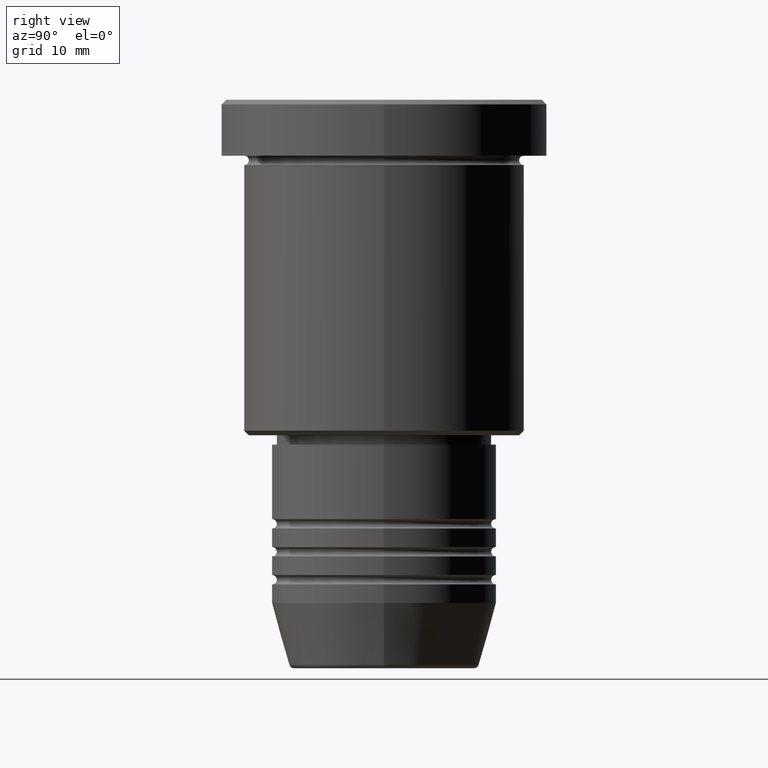
[diagram: clean part render]
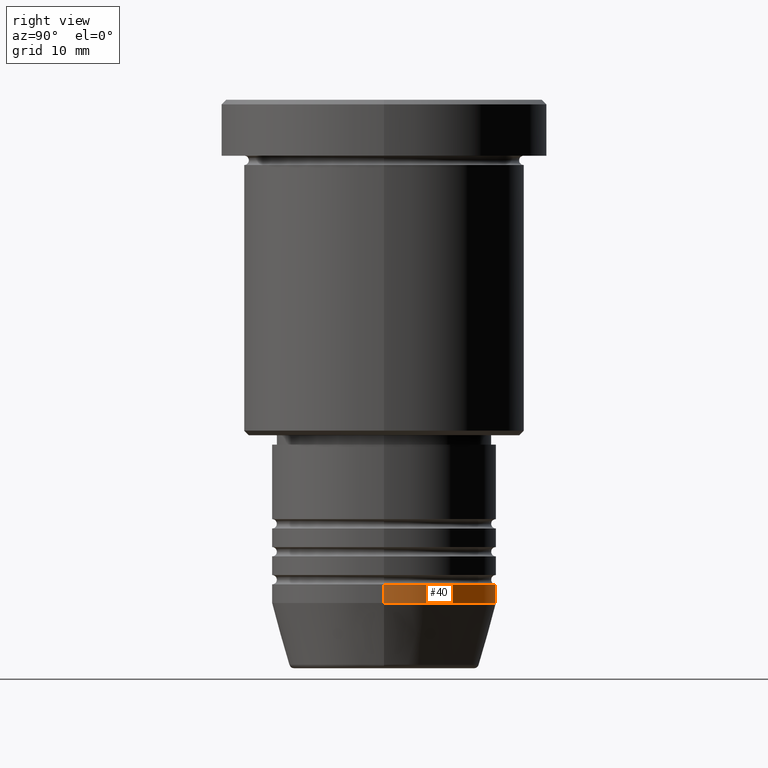
[diagram: same view with one face highlighted and labeled with its STEP entity id]
A machine part, right view. The second image highlights one B-rep face of the part: STEP entity #40.
In plain terms, the highlighted cylindrical surface (partial cylindrical patch) has radius 12 mm, axis along (-0, -0, 1).
Its self-contained STEP definition (entity closure, byte-faithful):
#3 = EDGE_CURVE ( 'NONE', #918, #211, #765, .T. ) ;
#8 = CARTESIAN_POINT ( 'NONE',  ( 0.000000000000000000, 0.000000000000000000, 0.000000000000000000 ) ) ;
#25 = CYLINDRICAL_SURFACE ( 'NONE', #587, 12.00000000000000000 ) ;
#40 = ADVANCED_FACE ( 'NONE', ( #100 ), #25, .T. ) ;
#74 = VERTEX_POINT ( 'NONE', #819 ) ;
#100 = FACE_OUTER_BOUND ( 'NONE', #848, .T. ) ;
#103 = ORIENTED_EDGE ( 'NONE', *, *, #264, .F. ) ;
#211 = VERTEX_POINT ( 'NONE', #1039 ) ;
#263 = CARTESIAN_POINT ( 'NONE',  ( 12.00000000000000000, 0.000000000000000000, 0.000000000000000000 ) ) ;
#264 = EDGE_CURVE ( 'NONE', #74, #918, #533, .T. ) ;
#272 = DIRECTION ( 'NONE',  ( 1.000000000000000000, 0.000000000000000000, 0.000000000000000000 ) ) ;
#277 = ORIENTED_EDGE ( 'NONE', *, *, #3, .F. ) ;
#343 = VECTOR ( 'NONE', #673, 1000.000000000000000 ) ;
#354 = DIRECTION ( 'NONE',  ( 1.000000000000000000, 0.000000000000000000, 0.000000000000000000 ) ) ;
#433 = CARTESIAN_POINT ( 'NONE',  ( 12.00000000000000000, 0.000000000000000000, -51.99999999999999289 ) ) ;
#466 = DIRECTION ( 'NONE',  ( -0.000000000000000000, -0.000000000000000000, 1.000000000000000000 ) ) ;
#470 = LINE ( 'NONE', #662, #343 ) ;
#522 = DIRECTION ( 'NONE',  ( -0.000000000000000000, -0.000000000000000000, 1.000000000000000000 ) ) ;
#533 = LINE ( 'NONE', #263, #1153 ) ;
#540 = CARTESIAN_POINT ( 'NONE',  ( -12.00000000000000000, 1.469576158976823947E-15, -53.99999999999999289 ) ) ;
#587 = AXIS2_PLACEMENT_3D ( 'NONE', #8, #736, #272 ) ;
#604 = AXIS2_PLACEMENT_3D ( 'NONE', #1072, #522, #895 ) ;
#645 = VERTEX_POINT ( 'NONE', #540 ) ;
#662 = CARTESIAN_POINT ( 'NONE',  ( -12.00000000000000000, 1.469576158976823947E-15, 0.000000000000000000 ) ) ;
#673 = DIRECTION ( 'NONE',  ( -0.000000000000000000, -0.000000000000000000, 1.000000000000000000 ) ) ;
#736 = DIRECTION ( 'NONE',  ( -0.000000000000000000, -0.000000000000000000, 1.000000000000000000 ) ) ;
#765 = CIRCLE ( 'NONE', #868, 12.00000000000000000 ) ;
#819 = CARTESIAN_POINT ( 'NONE',  ( 12.00000000000000000, 0.000000000000000000, -53.99999999999999289 ) ) ;
#848 = EDGE_LOOP ( 'NONE', ( #889, #1070, #277, #103 ) ) ;
#868 = AXIS2_PLACEMENT_3D ( 'NONE', #1112, #466, #354 ) ;
#889 = ORIENTED_EDGE ( 'NONE', *, *, #913, .T. ) ;
#895 = DIRECTION ( 'NONE',  ( 1.000000000000000000, 0.000000000000000000, 0.000000000000000000 ) ) ;
#905 = DIRECTION ( 'NONE',  ( -0.000000000000000000, -0.000000000000000000, 1.000000000000000000 ) ) ;
#913 = EDGE_CURVE ( 'NONE', #74, #645, #1064, .T. ) ;
#918 = VERTEX_POINT ( 'NONE', #433 ) ;
#1010 = EDGE_CURVE ( 'NONE', #645, #211, #470, .T. ) ;
#1039 = CARTESIAN_POINT ( 'NONE',  ( -12.00000000000000000, 1.469576158976823947E-15, -51.99999999999999289 ) ) ;
#1064 = CIRCLE ( 'NONE', #604, 12.00000000000000000 ) ;
#1070 = ORIENTED_EDGE ( 'NONE', *, *, #1010, .T. ) ;
#1072 = CARTESIAN_POINT ( 'NONE',  ( 0.000000000000000000, 0.000000000000000000, -53.99999999999999289 ) ) ;
#1112 = CARTESIAN_POINT ( 'NONE',  ( 0.000000000000000000, 0.000000000000000000, -51.99999999999999289 ) ) ;
#1153 = VECTOR ( 'NONE', #905, 1000.000000000000000 ) ;